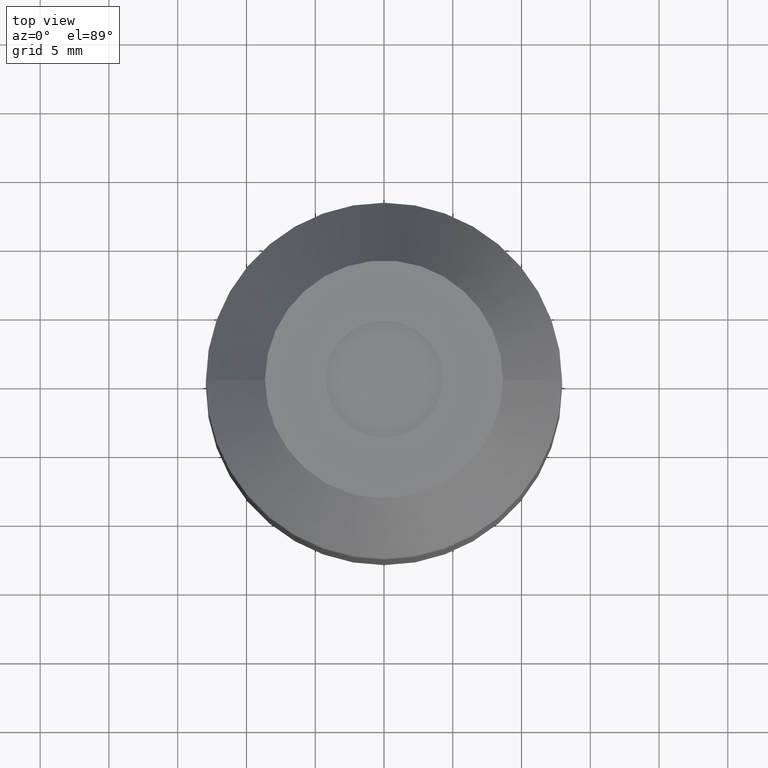
[diagram: clean part render]
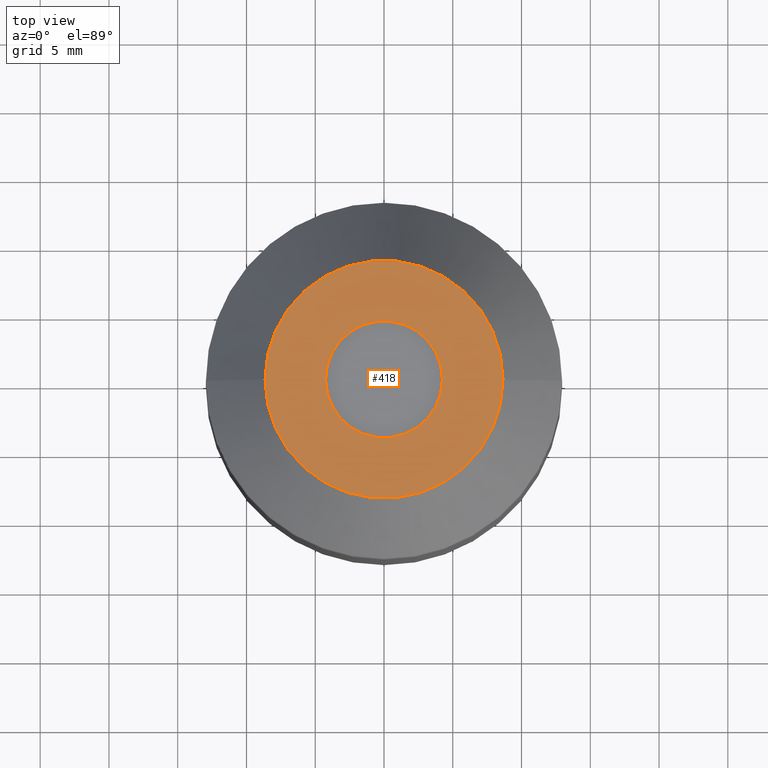
[diagram: same view with one face highlighted and labeled with its STEP entity id]
A machine part, top view. The second image highlights one B-rep face of the part: STEP entity #418.
In plain terms, the highlighted planar face has unit normal (0, 0, -1).
Its self-contained STEP definition (entity closure, byte-faithful):
#13 = CARTESIAN_POINT ( 'NONE',  ( 4.250000000000000000, 0.000000000000000000, 37.94999999999999574 ) ) ;
#30 = CARTESIAN_POINT ( 'NONE',  ( 0.000000000000000000, 7.250000000000000000, 37.94999999999999574 ) ) ;
#52 = AXIS2_PLACEMENT_3D ( 'NONE', #85, #257, #676 ) ;
#76 = CARTESIAN_POINT ( 'NONE',  ( 0.000000000000000000, 0.000000000000000000, 37.94999999999999574 ) ) ;
#85 = CARTESIAN_POINT ( 'NONE',  ( 0.000000000000000000, 0.000000000000000000, 37.94999999999999574 ) ) ;
#180 = CARTESIAN_POINT ( 'NONE',  ( -8.650000000000000355, 0.000000000000000000, 37.94999999999999574 ) ) ;
#231 = CARTESIAN_POINT ( 'NONE',  ( 0.000000000000000000, 0.000000000000000000, 37.94999999999999574 ) ) ;
#256 = DIRECTION ( 'NONE',  ( 1.000000000000000000, 0.000000000000000000, 0.000000000000000000 ) ) ;
#257 = DIRECTION ( 'NONE',  ( 0.000000000000000000, 0.000000000000000000, 1.000000000000000000 ) ) ;
#260 = EDGE_CURVE ( 'NONE', #292, #1031, #649, .T. ) ;
#284 = CIRCLE ( 'NONE', #888, 4.250000000000000000 ) ;
#292 = VERTEX_POINT ( 'NONE', #1064 ) ;
#319 = DIRECTION ( 'NONE',  ( 1.000000000000000000, 0.000000000000000000, 0.000000000000000000 ) ) ;
#328 = AXIS2_PLACEMENT_3D ( 'NONE', #30, #683, #945 ) ;
#334 = DIRECTION ( 'NONE',  ( 0.000000000000000000, 0.000000000000000000, 1.000000000000000000 ) ) ;
#338 = AXIS2_PLACEMENT_3D ( 'NONE', #924, #1008, #256 ) ;
#390 = CIRCLE ( 'NONE', #52, 4.250000000000000000 ) ;
#415 = DIRECTION ( 'NONE',  ( 1.000000000000000000, 0.000000000000000000, 0.000000000000000000 ) ) ;
#418 = ADVANCED_FACE ( 'NONE', ( #609, #689 ), #434, .F. ) ;
#434 = PLANE ( 'NONE',  #328 ) ;
#510 = CARTESIAN_POINT ( 'NONE',  ( -4.250000000000000000, 5.204748896376249713E-16, 37.94999999999999574 ) ) ;
#568 = CIRCLE ( 'NONE', #338, 8.650000000000000355 ) ;
#572 = ORIENTED_EDGE ( 'NONE', *, *, #260, .T. ) ;
#591 = EDGE_LOOP ( 'NONE', ( #941, #990 ) ) ;
#609 = FACE_OUTER_BOUND ( 'NONE', #612, .T. ) ;
#612 = EDGE_LOOP ( 'NONE', ( #974, #572 ) ) ;
#638 = EDGE_CURVE ( 'NONE', #758, #1074, #284, .T. ) ;
#649 = CIRCLE ( 'NONE', #1029, 8.650000000000000355 ) ;
#676 = DIRECTION ( 'NONE',  ( 1.000000000000000000, 0.000000000000000000, 0.000000000000000000 ) ) ;
#683 = DIRECTION ( 'NONE',  ( 0.000000000000000000, 0.000000000000000000, -1.000000000000000000 ) ) ;
#689 = FACE_BOUND ( 'NONE', #591, .T. ) ;
#758 = VERTEX_POINT ( 'NONE', #510 ) ;
#798 = EDGE_CURVE ( 'NONE', #1074, #758, #390, .T. ) ;
#888 = AXIS2_PLACEMENT_3D ( 'NONE', #231, #1070, #319 ) ;
#924 = CARTESIAN_POINT ( 'NONE',  ( 0.000000000000000000, 0.000000000000000000, 37.94999999999999574 ) ) ;
#941 = ORIENTED_EDGE ( 'NONE', *, *, #798, .F. ) ;
#945 = DIRECTION ( 'NONE',  ( 0.000000000000000000, -1.000000000000000000, 0.000000000000000000 ) ) ;
#974 = ORIENTED_EDGE ( 'NONE', *, *, #1057, .T. ) ;
#990 = ORIENTED_EDGE ( 'NONE', *, *, #638, .F. ) ;
#1008 = DIRECTION ( 'NONE',  ( 0.000000000000000000, 0.000000000000000000, 1.000000000000000000 ) ) ;
#1029 = AXIS2_PLACEMENT_3D ( 'NONE', #76, #334, #415 ) ;
#1031 = VERTEX_POINT ( 'NONE', #180 ) ;
#1057 = EDGE_CURVE ( 'NONE', #1031, #292, #568, .T. ) ;
#1064 = CARTESIAN_POINT ( 'NONE',  ( 8.650000000000000355, 1.322618543079139916E-15, 37.94999999999999574 ) ) ;
#1070 = DIRECTION ( 'NONE',  ( 0.000000000000000000, 0.000000000000000000, 1.000000000000000000 ) ) ;
#1074 = VERTEX_POINT ( 'NONE', #13 ) ;